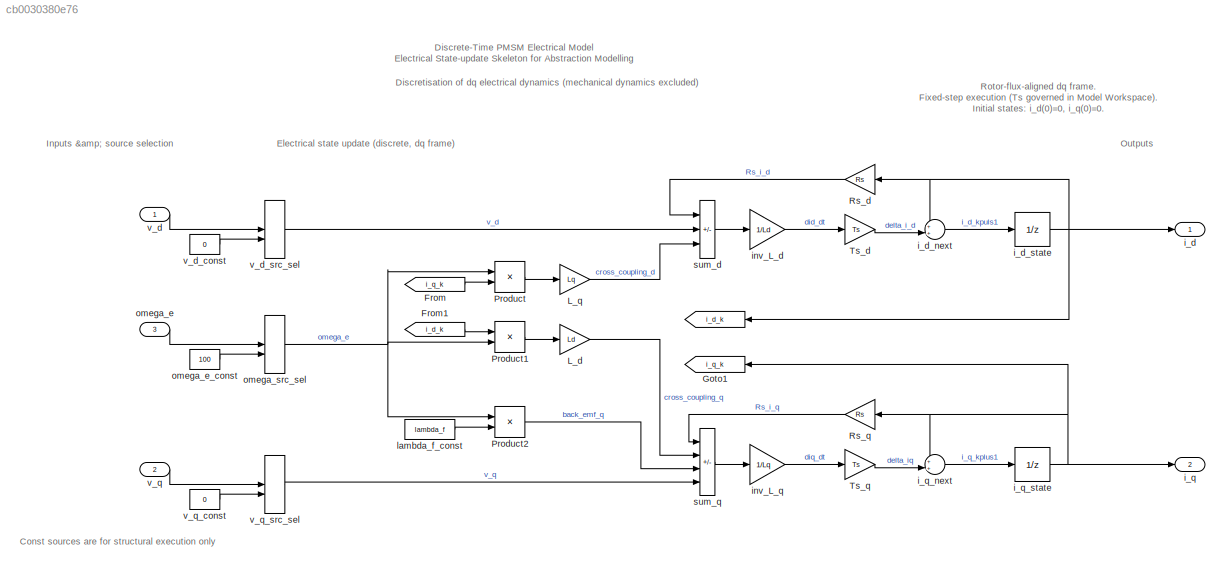
MODEL slx_cb0030380e76
KIND model
CONFIG AbsTol = auto
CONFIG EnableMultiTasking = off
CONFIG FixedStep = Ts
CONFIG MaxStep = auto
CONFIG MinStep = auto
CONFIG RelTol = 1e-3
CONFIG SampleTimeConstraint = Unconstrained
CONFIG SolverName = FixedStepDiscrete
CONFIG StartTime = 0.0
CONFIG StopTime = 0.1
WORKSPACE source: MATLAB code (in-file)
WORKSPACE Ts = 1e-6  (= 1e-06)
WORKSPACE Rs = 0.38
WORKSPACE Ld = 1e-3  (= 0.001)
WORKSPACE Lq = 1e-3  (= 0.001)
WORKSPACE lambda_f = 0.1
BLOCK [Goto]  
  GotoTag = i_d_k
  NameLocation = top
  TagVisibility = global
BLOCK [From] From
  GotoTag = i_q_k
  TagVisibility = global
BLOCK [From] From1
  GotoTag = i_d_k
  TagVisibility = global
BLOCK [Goto] Goto1
  GotoTag = i_q_k
  NameLocation = top
  TagVisibility = global
BLOCK [Gain] L_d
  Gain = Ld
BLOCK [Gain] L_q
  Gain = Lq
BLOCK [Product] Product
BLOCK [Product] Product1
BLOCK [Product] Product2
BLOCK [Gain] Rs_d
  Gain = Rs
BLOCK [Gain] Rs_q
  Gain = Rs
BLOCK [Gain] Ts_d
  Gain = Ts
BLOCK [Gain] Ts_q
  Gain = Ts
BLOCK [Outport] i_d
BLOCK [Sum] i_d_next
  Inputs = ++|
BLOCK [UnitDelay] i_d_state
  HasFrameUpgradeWarning = on
  SampleTime = Ts
BLOCK [Outport] i_q
  Port = 2
BLOCK [Sum] i_q_next
  Inputs = ++|
BLOCK [UnitDelay] i_q_state
  HasFrameUpgradeWarning = on
  SampleTime = Ts
BLOCK [Gain] inv_L_d
  Gain = 1/Ld
BLOCK [Gain] inv_L_q
  Gain = 1/Lq
BLOCK [Constant] lambda_f_const
  Value = lambda_f
BLOCK [Inport] omega_e
  Port = 3
BLOCK [Constant] omega_e_const
  Value = 100
BLOCK [ManualSwitch] omega_src_sel
  CurrentSetting = 0
BLOCK [Sum] sum_d
  IconShape = rectangular
  Inputs = -++
BLOCK [Sum] sum_q
  IconShape = rectangular
  Inputs = ---+
BLOCK [Inport] v_d
BLOCK [Constant] v_d_const
  Value = 0
BLOCK [ManualSwitch] v_d_src_sel
  CurrentSetting = 0
BLOCK [Inport] v_q
  Port = 2
BLOCK [Constant] v_q_const
  Value = 0
BLOCK [ManualSwitch] v_q_src_sel
  CurrentSetting = 0
ANNOTATION (root): Discrete-Time PMSM Electrical Model Electrical State-update Skeleton for Abstraction Modelling
ANNOTATION (root): Electrical state update (discrete, dq frame)
ANNOTATION (root): Discretisation of dq electrical dynamics (mechanical dynamics excluded)
ANNOTATION (root): Outputs
ANNOTATION (root): Const sources are for structural execution only
ANNOTATION (root): Rotor-flux-aligned dq frame. Fixed-step execution (Ts governed in Model Workspace). Initial states: i_d(0)=0, i_q(0)=0.
ANNOTATION (root): Inputs & source selection
LINE From1:1 -> Product1:1
LINE From:1 -> Product:2
LINE L_d:1 -> sum_q:2
LINE L_q:1 -> sum_d:3
LINE Product1:1 -> L_d:1
LINE Product2:1 -> sum_q:3
LINE Product:1 -> L_q:1
LINE Rs_d:1 -> sum_d:1
LINE Rs_q:1 -> sum_q:1
LINE Ts_d:1 -> i_d_next:2
LINE Ts_q:1 -> i_q_next:2
LINE i_d_next:1 -> i_d_state:1
NET i_d_state:1 ->  :1, Rs_d:1, i_d:1, i_d_next:1
LINE i_q_next:1 -> i_q_state:1
NET i_q_state:1 -> Goto1:1, Rs_q:1, i_q:1, i_q_next:1
LINE inv_L_d:1 -> Ts_d:1
LINE inv_L_q:1 -> Ts_q:1
LINE lambda_f_const:1 -> Product2:2
LINE omega_e:1 -> omega_src_sel:1
LINE omega_e_const:1 -> omega_src_sel:2
NET omega_src_sel:1 -> Product1:2, Product2:1, Product:1
LINE sum_d:1 -> inv_L_d:1
LINE sum_q:1 -> inv_L_q:1
LINE v_d:1 -> v_d_src_sel:1
LINE v_d_const:1 -> v_d_src_sel:2
LINE v_d_src_sel:1 -> sum_d:2
LINE v_q:1 -> v_q_src_sel:1
LINE v_q_const:1 -> v_q_src_sel:2
LINE v_q_src_sel:1 -> sum_q:4
note: NET lines group one-source signal fan-out (src -> all destinations, sorted); 1:1 wires keep LINE
